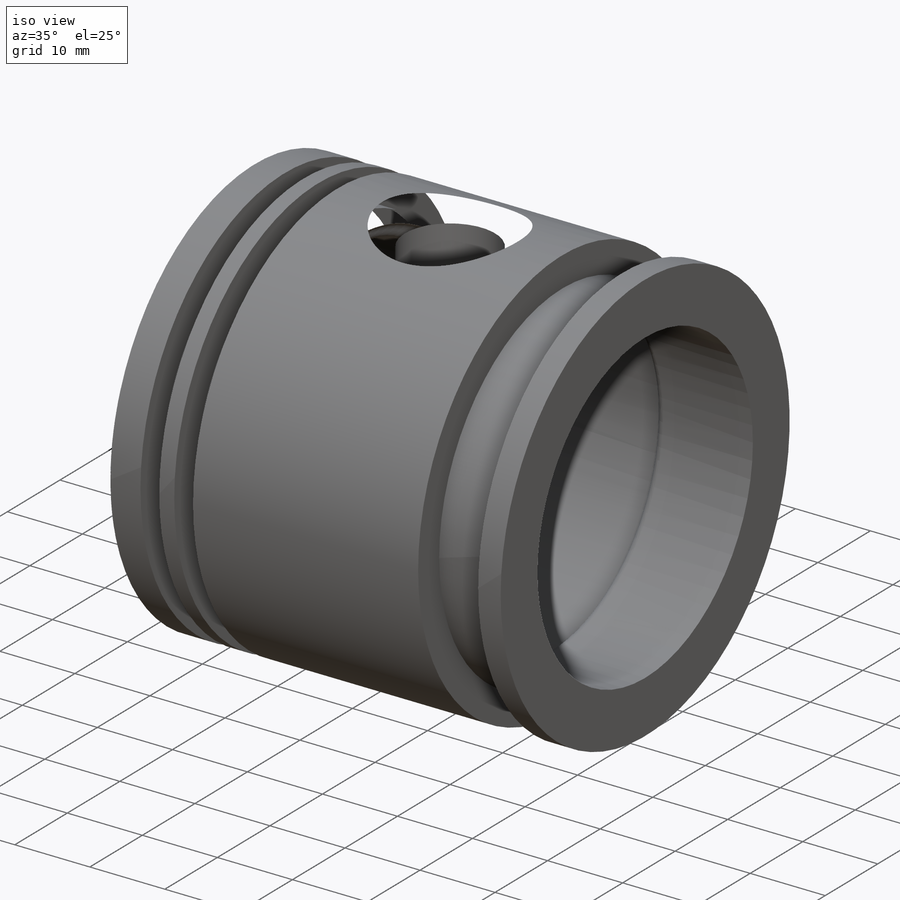
[diagram: iso view]
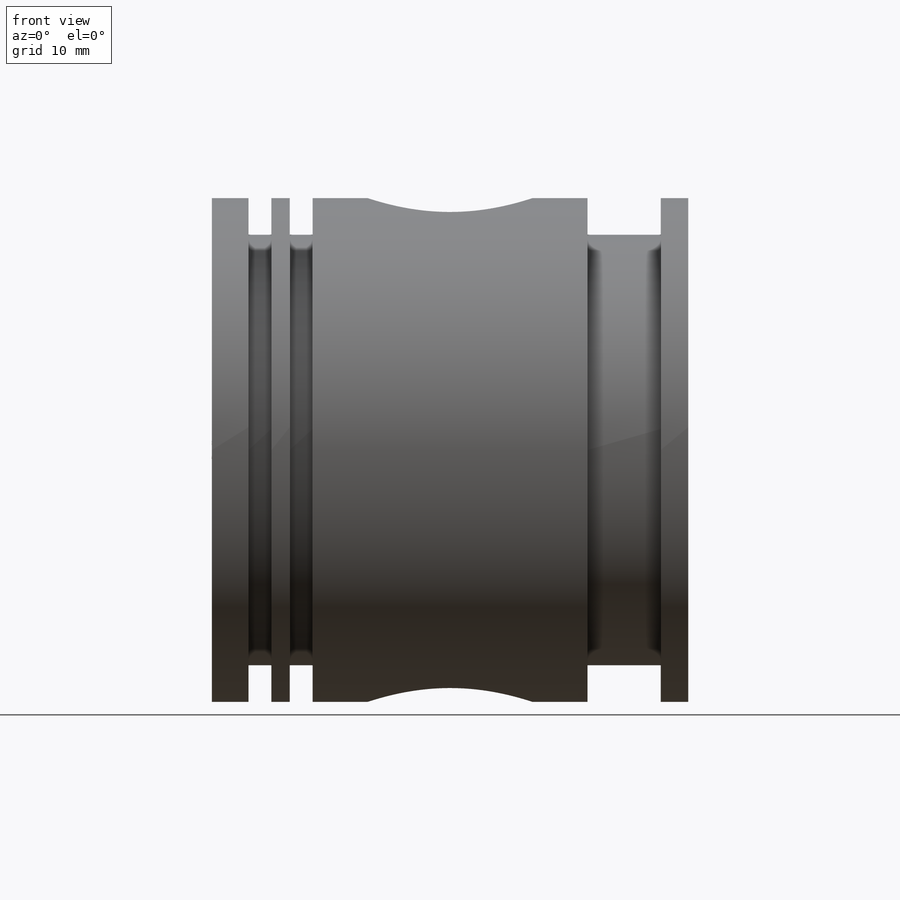
[diagram: front view]
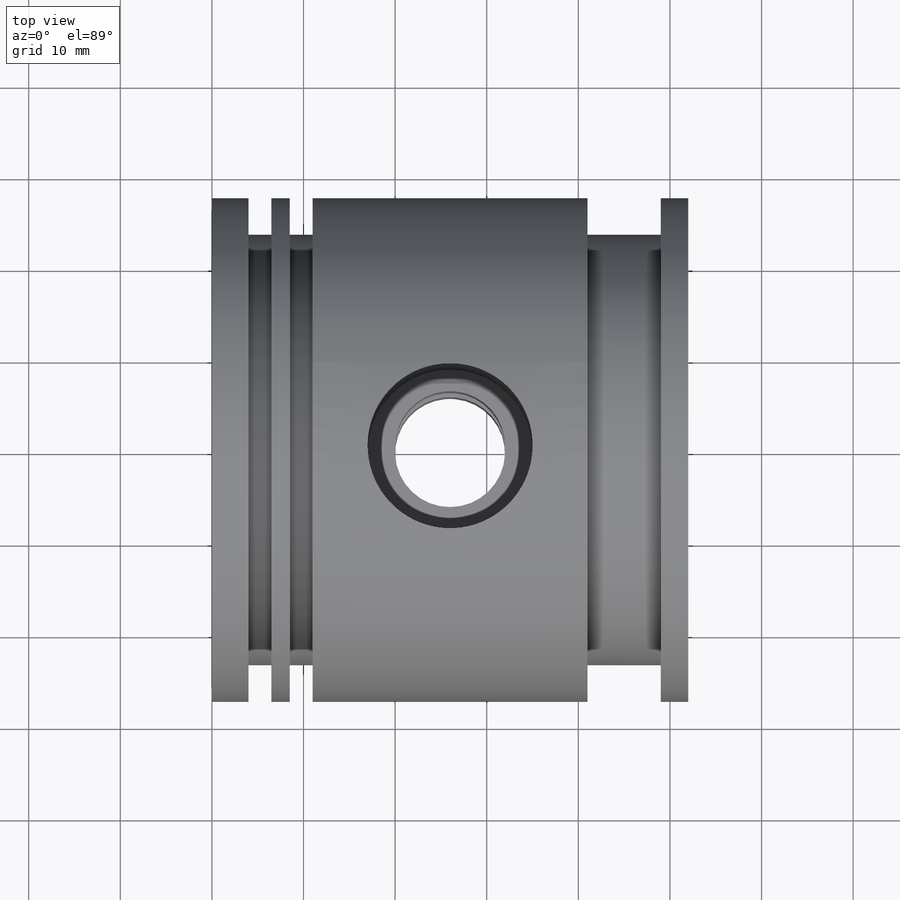
[diagram: top view]
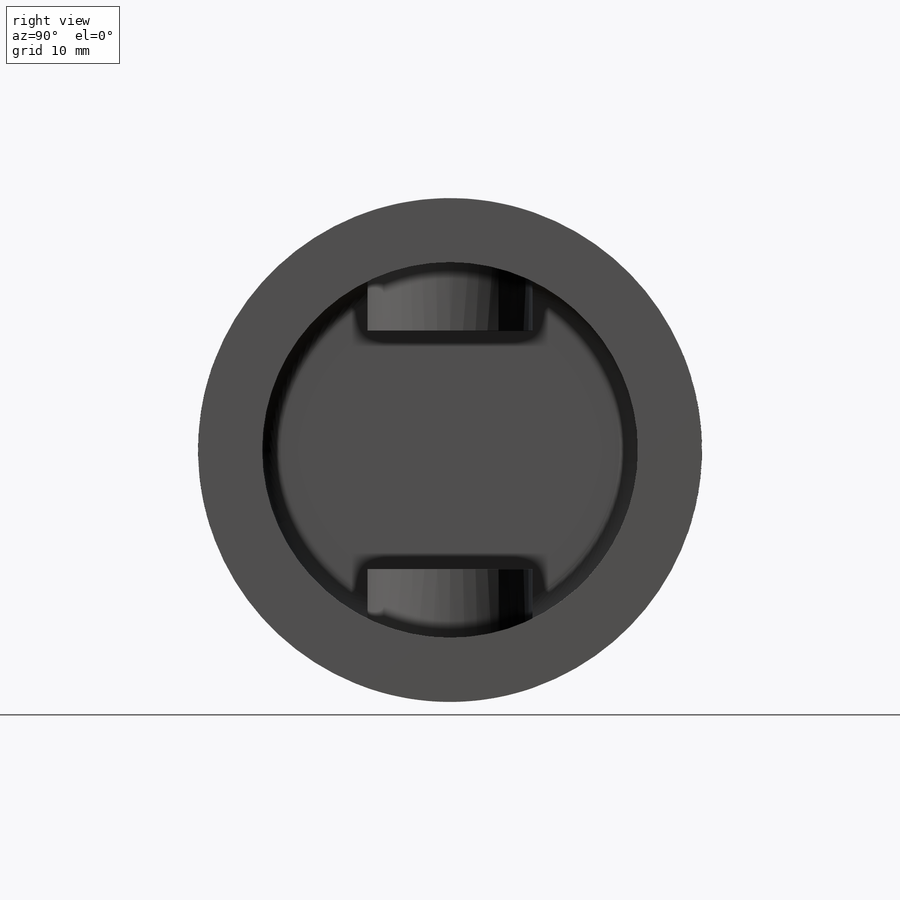
[diagram: right view]
SOLIDWORKS PART (.sldprt)
format: sldprt  version: not decoded by parser v0  size: 774,656 bytes
history: native  units: mm
features: sketch x5, plane x3, fillet x3, cut_extrude x3, material x1, revolve x1, extrude x1, mirror x1 (+9 scaffold rows collapsed)
feature tree (27):
  scaffold x9  (default folders/planes/origin — collapsed)
  material  "Сталь"
  plane  "Спереди"
  plane  "Сверху"
  plane  "Справа"
  sketch  "Эскиз1"  dims[D1=55.0mm D2=4.0mm D3=2.5mm D4=4.0mm D5=2.0mm D6=30.0mm D7=8.0mm D8=4.0mm D9=52.0mm D10=3.5mm D11=7.0mm D12=5.0mm D13=9.5mm D14=13.0mm]
  revolve  "Повернуть1"  Angle=360deg
  fillet  "Скругление1"  Radius=1mm
  fillet  "Скругление2"  Radius=2mm
  sketch  "Эскиз2"  dims[D2=12.0mm D3=18.0mm D1=26.0mm]
  extrude  "Бобышка-Вытянуть1"  [1 undecoded]
  cut_extrude  "Вырез-Вытянуть1"  [1 undecoded]
  sketch  "Эскиз2<3>"
  cut_extrude  "Вырез-Вытянуть2"  [1 undecoded]
  sketch  "Эскиз2<4>"  dims[D1=13.0mm D2=13.0mm]
  fillet  "Скругление3"  Radius=1mm
  sketch  "Эскиз3"  dims[D1=18.0mm]
  cut_extrude  "Вырез-Вытянуть3"  Depth=3mm
  mirror  "Зеркальное отражение1"
decode coverage: 9 of 14 modeling features carry decoded parameters
note: 3 parameter values undecoded
summary: no parameter record found for 3 features
note: suppression state not decoded; provenance and decode notes live in map.json
